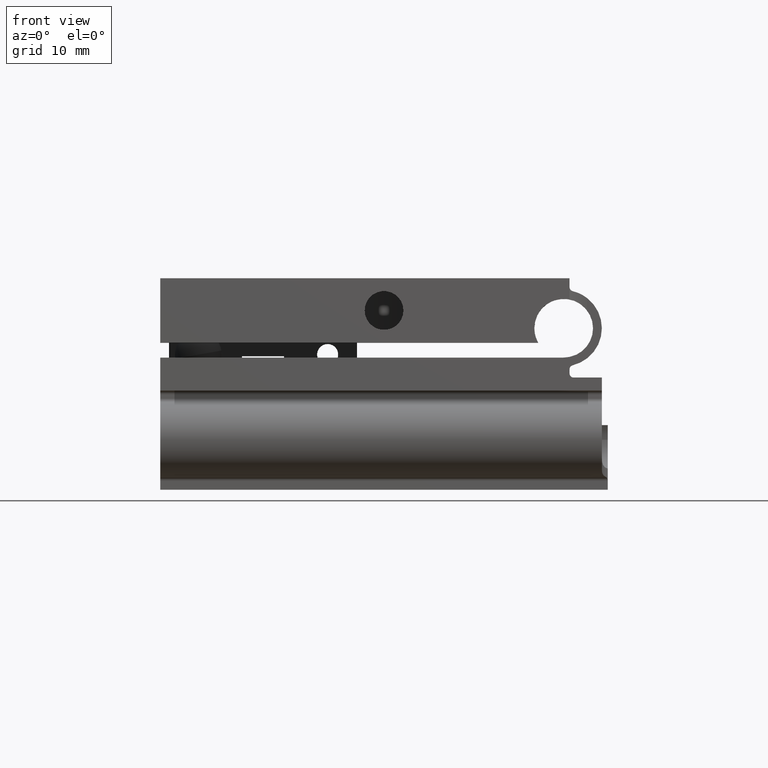
[diagram: clean part render]
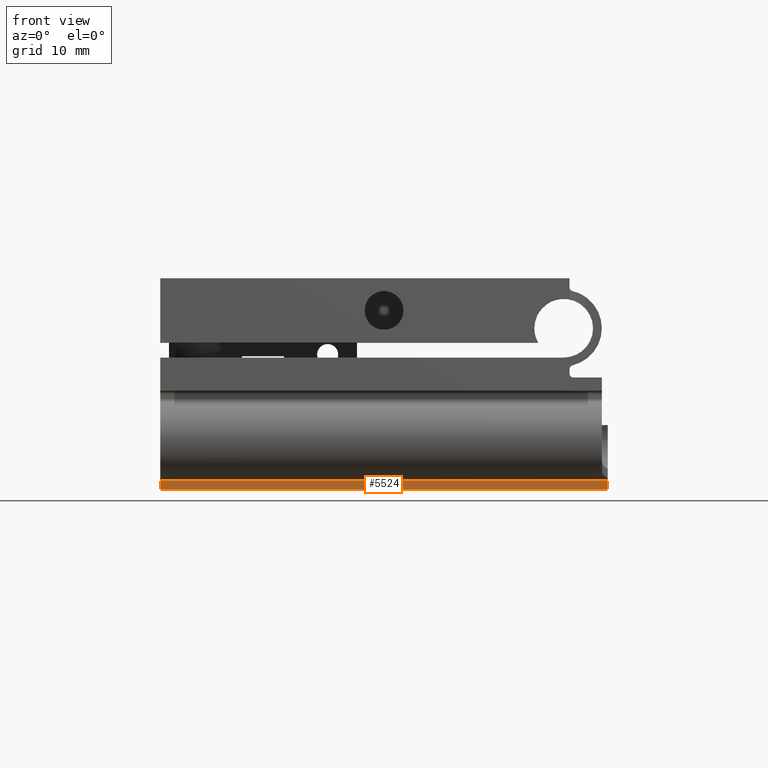
[diagram: same view with one face highlighted and labeled with its STEP entity id]
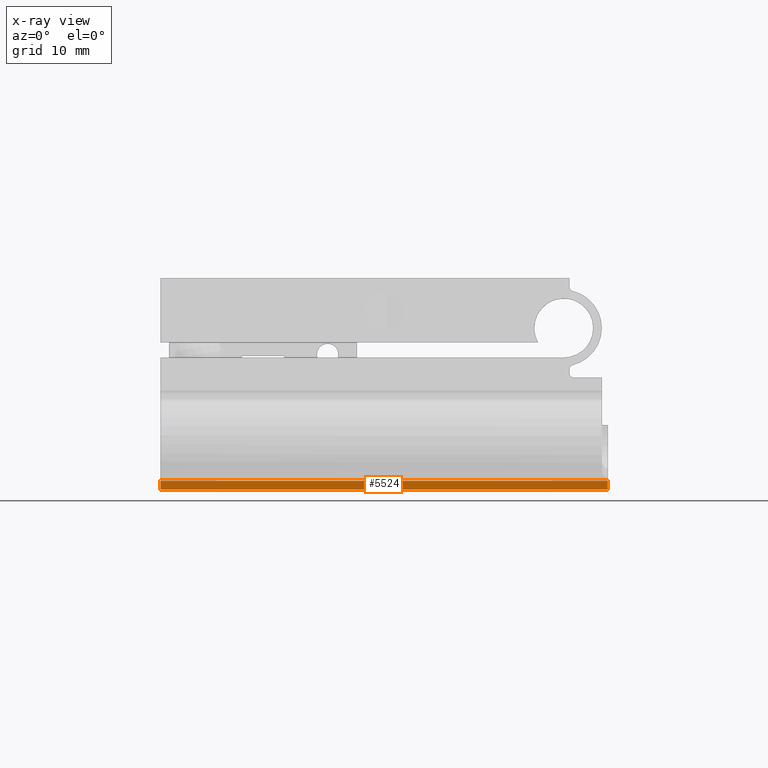
[diagram: x-ray of the same camera — body ghosted, the highlighted face saturated]
A machine part, front view. The second image highlights one B-rep face of the part: STEP entity #5524.
The next image is the same camera in x-ray: the body ghosted, the highlighted face saturated — about 0% of this face is hidden behind the body in this view.
In plain terms, the highlighted planar face has unit normal (0, 1, -0).
Its self-contained STEP definition (entity closure, byte-faithful):
#36 = CARTESIAN_POINT ( 'NONE',  ( 19.04999999999999361, -15.79999999999999538, -8.999999999999998224 ) ) ;
#413 = AXIS2_PLACEMENT_3D ( 'NONE', #3281, #6583, #9944 ) ;
#694 = CARTESIAN_POINT ( 'NONE',  ( 19.04999999999999361, -15.79999999999999538, -7.961308144666279674 ) ) ;
#829 = VECTOR ( 'NONE', #5158, 1000.000000000000000 ) ;
#1328 = LINE ( 'NONE', #5399, #7850 ) ;
#1498 = DIRECTION ( 'NONE',  ( -9.244463733058732095E-33, 5.551115123125781470E-17, 1.000000000000000000 ) ) ;
#1976 = CARTESIAN_POINT ( 'NONE',  ( -19.05000000000000782, -15.79999999999998117, -8.999999999999998224 ) ) ;
#2140 = VERTEX_POINT ( 'NONE', #36 ) ;
#2674 = EDGE_LOOP ( 'NONE', ( #7221, #5623, #3811, #7156 ) ) ;
#3154 = CARTESIAN_POINT ( 'NONE',  ( -19.05000000000001492, -15.79999999999999538, -8.248213829942356412 ) ) ;
#3281 = CARTESIAN_POINT ( 'NONE',  ( -19.05000000000001492, -15.79999999999999538, -7.961308144666279674 ) ) ;
#3491 = LINE ( 'NONE', #6075, #829 ) ;
#3502 = EDGE_CURVE ( 'NONE', #5481, #8054, #8980, .T. ) ;
#3811 = ORIENTED_EDGE ( 'NONE', *, *, #5304, .F. ) ;
#3939 = LINE ( 'NONE', #694, #9395 ) ;
#5158 = DIRECTION ( 'NONE',  ( 1.000000000000000000, -5.551115123125782702E-17, 1.232595164407830946E-32 ) ) ;
#5304 = EDGE_CURVE ( 'NONE', #10696, #8054, #1328, .T. ) ;
#5399 = CARTESIAN_POINT ( 'NONE',  ( -19.05000000000001492, -15.79999999999999538, -7.961308144666279674 ) ) ;
#5481 = VERTEX_POINT ( 'NONE', #10715 ) ;
#5524 = ADVANCED_FACE ( 'NONE', ( #7403 ), #10769, .F. ) ;
#5623 = ORIENTED_EDGE ( 'NONE', *, *, #3502, .T. ) ;
#6046 = CARTESIAN_POINT ( 'NONE',  ( -19.05000000000001492, -15.79999999999999538, -8.248213829942356412 ) ) ;
#6075 = CARTESIAN_POINT ( 'NONE',  ( -19.05000000000001492, -15.79999999999999538, -8.999999999999998224 ) ) ;
#6291 = DIRECTION ( 'NONE',  ( -1.000000000000000000, 5.551115123125782702E-17, -1.232595164407830946E-32 ) ) ;
#6583 = DIRECTION ( 'NONE',  ( 5.551115123125782702E-17, 1.000000000000000000, -5.551115123125782086E-17 ) ) ;
#7156 = ORIENTED_EDGE ( 'NONE', *, *, #9950, .T. ) ;
#7208 = VECTOR ( 'NONE', #6291, 1000.000000000000000 ) ;
#7221 = ORIENTED_EDGE ( 'NONE', *, *, #9370, .T. ) ;
#7403 = FACE_OUTER_BOUND ( 'NONE', #2674, .T. ) ;
#7850 = VECTOR ( 'NONE', #8734, 1000.000000000000000 ) ;
#8054 = VERTEX_POINT ( 'NONE', #6046 ) ;
#8734 = DIRECTION ( 'NONE',  ( -9.244463733058732095E-33, 5.551115123125781470E-17, 1.000000000000000000 ) ) ;
#8980 = LINE ( 'NONE', #3154, #7208 ) ;
#9370 = EDGE_CURVE ( 'NONE', #2140, #5481, #3939, .T. ) ;
#9395 = VECTOR ( 'NONE', #1498, 1000.000000000000000 ) ;
#9944 = DIRECTION ( 'NONE',  ( -1.000000000000000000, 5.551115123125782702E-17, -1.232595164407830946E-32 ) ) ;
#9950 = EDGE_CURVE ( 'NONE', #10696, #2140, #3491, .T. ) ;
#10696 = VERTEX_POINT ( 'NONE', #1976 ) ;
#10715 = CARTESIAN_POINT ( 'NONE',  ( 19.04999999999999361, -15.79999999999999538, -8.248213829942356412 ) ) ;
#10769 = PLANE ( 'NONE',  #413 ) ;